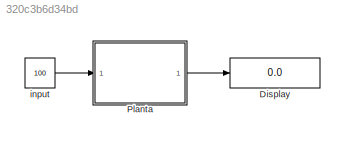
MODEL slx_320c3b6d34bd
KIND model
BLOCK [Display] Display
  Decimation = 1
  Lockdown = off
  Ports = [1]
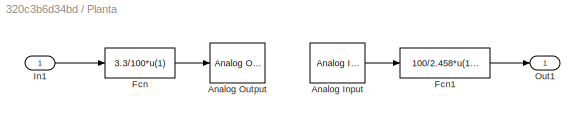
BLOCK [SubSystem] Planta
  FunctionWithSeparateData = off
  MaskHideContents = off
  MinAlgLoopOccurrences = off
  Opaque = off
  Ports = [1, 1]
  PropExecContextOutsideSubsystem = off
  RTWSystemCode = Auto
  RequestExecContextInheritance = off
BLOCK [Reference] Planta/Analog Input  REF=rtwinlib/Analog Input
  AttributesFormatString = National Instruments\nPCI-6229 [auto]
  Channels = 1
  DataType = 1
  DrvAddress = 4294967295
  DrvName = National_Instruments/PCI-6229
  DrvOptions = [0 0 0 0 0]
  MaxMissedTicks = 10
  Ports = [0, 1]
  RangeMode = 1
  SampleTime = 0.01
  ShowMissedTicks = off
  SourceBlock = rtwinlib/Analog Input
  SourceType = RTWin Analog Input
  VoltRange = 1
  YieldWhenWaiting = off
BLOCK [Reference] Planta/Analog Output  REF=rtwinlib/Analog Output
  AttributesFormatString = National Instruments\nPCI-6229 [auto]
  Channels = 1
  DrvAddress = 4294967295
  DrvName = National_Instruments/PCI-6229
  DrvOptions = [0 0 0 0 0]
  FinalValue = []
  InitialValue = []
  MaxMissedTicks = 10
  Ports = [1]
  RangeMode = 1
  SampleTime = 0.01
  ShowMissedTicks = off
  SourceBlock = rtwinlib/Analog Output
  SourceType = RTWin Analog Output
  VoltRange = 1
  YieldWhenWaiting = off
BLOCK [Fcn] Planta/Fcn
  Expr = 3.3/100*u(1)
  SampleTime = 0.01
BLOCK [Fcn] Planta/Fcn1
  Expr = 100/2.458*u(1)-24.414
  SampleTime = 0.01
BLOCK [Inport] Planta/In1
  IconDisplay = Port number
BLOCK [Outport] Planta/Out1
  IconDisplay = Port number
BLOCK [Constant] input
  Value = 100
LINE Planta/Analog Input:1 -> Planta/Fcn1:1
LINE Planta/Fcn1:1 -> Planta/Out1:1
LINE Planta/Fcn:1 -> Planta/Analog Output:1
LINE Planta/In1:1 -> Planta/Fcn:1
LINE Planta:1 -> Display:1
LINE input:1 -> Planta:1
